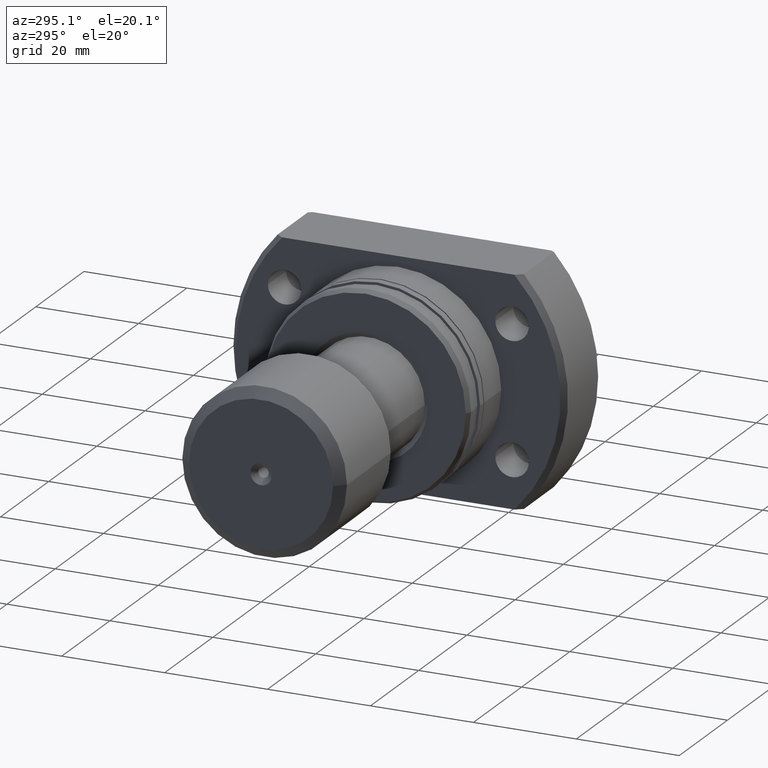
[diagram: clean part render]
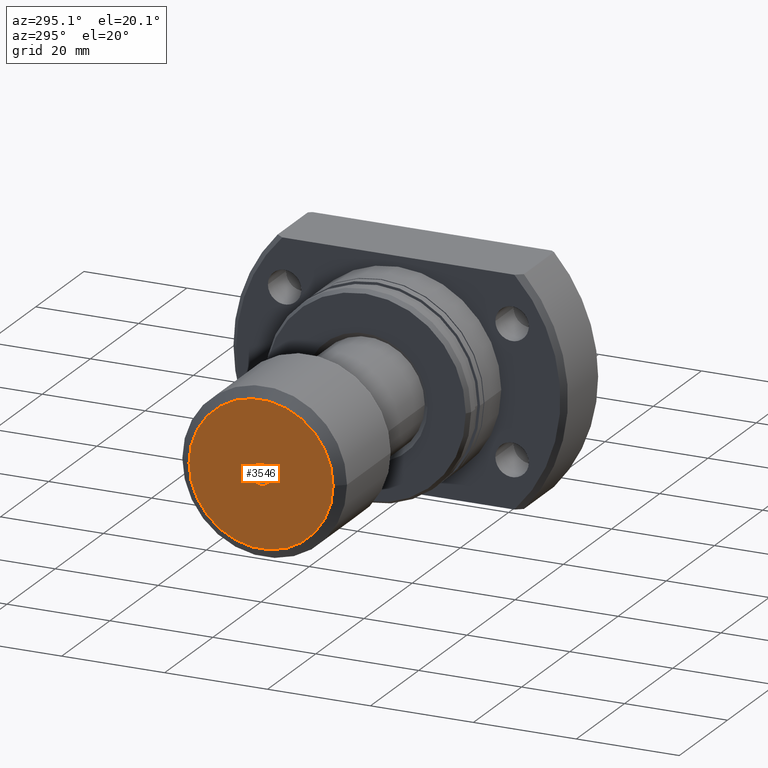
[diagram: same view with one face highlighted and labeled with its STEP entity id]
A machine part, auxiliary view. The second image highlights one B-rep face of the part: STEP entity #3546.
In plain terms, the highlighted planar face has unit normal (-1, -0, 0).
Its self-contained STEP definition (entity closure, byte-faithful):
#78 = CIRCLE ( 'NONE', #2336, 14.00000000000000000 ) ;
#423 = ORIENTED_EDGE ( 'NONE', *, *, #3073, .T. ) ;
#480 = DIRECTION ( 'NONE',  ( 1.069542322069066109E-17, -1.000000000000000000, 0.000000000000000000 ) ) ;
#502 = CIRCLE ( 'NONE', #3005, 2.074999999999979750 ) ;
#511 = ORIENTED_EDGE ( 'NONE', *, *, #1870, .T. ) ;
#590 = EDGE_CURVE ( 'NONE', #1500, #3182, #78, .T. ) ;
#708 = CARTESIAN_POINT ( 'NONE',  ( 7.823847968583126621E-16, 0.000000000000000000, 0.000000000000000000 ) ) ;
#736 = ORIENTED_EDGE ( 'NONE', *, *, #590, .T. ) ;
#748 = DIRECTION ( 'NONE',  ( -1.000000000000000000, -1.069542322069065801E-17, -0.000000000000000000 ) ) ;
#760 = VERTEX_POINT ( 'NONE', #1439 ) ;
#853 = CARTESIAN_POINT ( 'NONE',  ( 1.714505518806294638E-15, -14.00000000000000000, 1.836970198721029589E-15 ) ) ;
#961 = EDGE_LOOP ( 'NONE', ( #2765, #736 ) ) ;
#1063 = DIRECTION ( 'NONE',  ( 1.069542322069065801E-17, -1.000000000000000000, 0.000000000000000000 ) ) ;
#1149 = DIRECTION ( 'NONE',  ( 1.000000000000000000, 1.069542322069065801E-17, 0.000000000000000000 ) ) ;
#1351 = PLANE ( 'NONE',  #1933 ) ;
#1430 = DIRECTION ( 'NONE',  ( -1.000000000000000000, -1.069542322069065801E-17, 0.000000000000000000 ) ) ;
#1439 = CARTESIAN_POINT ( 'NONE',  ( 7.823847968583126621E-16, 0.000000000000000000, 2.074999999999979750 ) ) ;
#1500 = VERTEX_POINT ( 'NONE', #853 ) ;
#1511 = CARTESIAN_POINT ( 'NONE',  ( 7.823847968583126621E-16, 2.541142108230733419E-16, -2.074999999999979750 ) ) ;
#1763 = CIRCLE ( 'NONE', #2654, 2.074999999999979750 ) ;
#1788 = EDGE_CURVE ( 'NONE', #3182, #1500, #3349, .T. ) ;
#1870 = EDGE_CURVE ( 'NONE', #3030, #760, #502, .T. ) ;
#1910 = FACE_BOUND ( 'NONE', #2017, .T. ) ;
#1933 = AXIS2_PLACEMENT_3D ( 'NONE', #3611, #1430, #1063 ) ;
#1965 = DIRECTION ( 'NONE',  ( 1.069542322069066571E-17, -1.000000000000000000, 0.000000000000000000 ) ) ;
#2017 = EDGE_LOOP ( 'NONE', ( #423, #511 ) ) ;
#2224 = DIRECTION ( 'NONE',  ( -1.000000000000000000, -1.069542322069065801E-17, -0.000000000000000000 ) ) ;
#2228 = CARTESIAN_POINT ( 'NONE',  ( 7.823847968583126621E-16, 0.000000000000000000, 0.000000000000000000 ) ) ;
#2336 = AXIS2_PLACEMENT_3D ( 'NONE', #2751, #2224, #3661 ) ;
#2654 = AXIS2_PLACEMENT_3D ( 'NONE', #708, #3235, #2945 ) ;
#2751 = CARTESIAN_POINT ( 'NONE',  ( 1.564769593716625324E-15, 1.673587304766748118E-32, 0.000000000000000000 ) ) ;
#2760 = AXIS2_PLACEMENT_3D ( 'NONE', #3329, #748, #480 ) ;
#2765 = ORIENTED_EDGE ( 'NONE', *, *, #1788, .T. ) ;
#2945 = DIRECTION ( 'NONE',  ( 1.069542322069066571E-17, -1.000000000000000000, 0.000000000000000000 ) ) ;
#3005 = AXIS2_PLACEMENT_3D ( 'NONE', #2228, #1149, #1965 ) ;
#3030 = VERTEX_POINT ( 'NONE', #1511 ) ;
#3073 = EDGE_CURVE ( 'NONE', #760, #3030, #1763, .T. ) ;
#3079 = CARTESIAN_POINT ( 'NONE',  ( 1.415033668626956010E-15, 14.00000000000000000, 0.000000000000000000 ) ) ;
#3182 = VERTEX_POINT ( 'NONE', #3079 ) ;
#3235 = DIRECTION ( 'NONE',  ( 1.000000000000000000, 1.069542322069065801E-17, 0.000000000000000000 ) ) ;
#3329 = CARTESIAN_POINT ( 'NONE',  ( 1.564769593716625324E-15, 1.673587304766748118E-32, 0.000000000000000000 ) ) ;
#3349 = CIRCLE ( 'NONE', #2760, 14.00000000000000000 ) ;
#3376 = FACE_OUTER_BOUND ( 'NONE', #961, .T. ) ;
#3546 = ADVANCED_FACE ( 'NONE', ( #1910, #3376 ), #1351, .T. ) ;
#3611 = CARTESIAN_POINT ( 'NONE',  ( 7.823847968583126621E-16, 8.367936523833740588E-33, 0.000000000000000000 ) ) ;
#3661 = DIRECTION ( 'NONE',  ( 1.069542322069066109E-17, -1.000000000000000000, 0.000000000000000000 ) ) ;